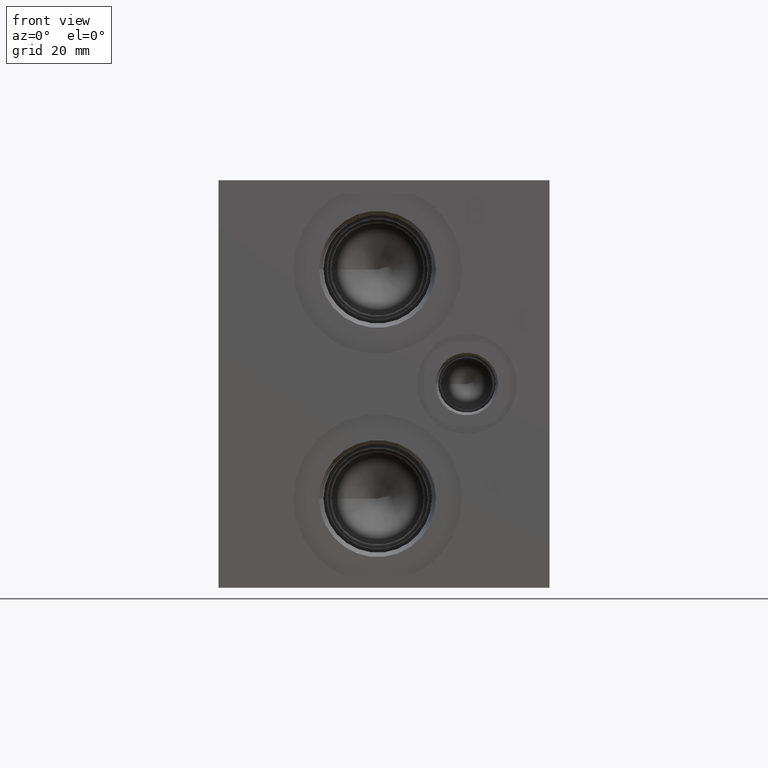
[diagram: clean part render]
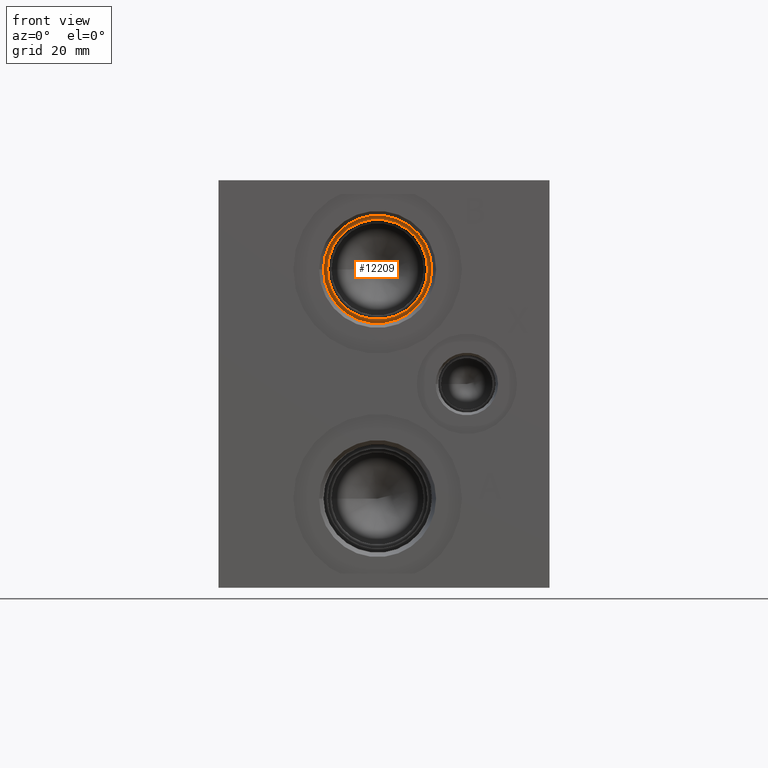
[diagram: same view with one face highlighted and labeled with its STEP entity id]
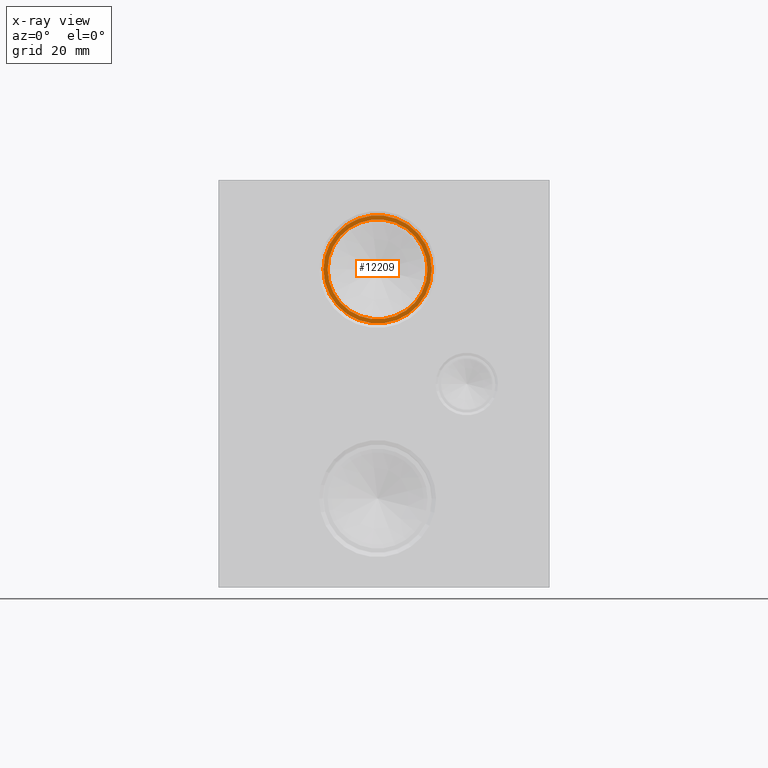
[diagram: x-ray of the same camera — body ghosted, the highlighted face saturated]
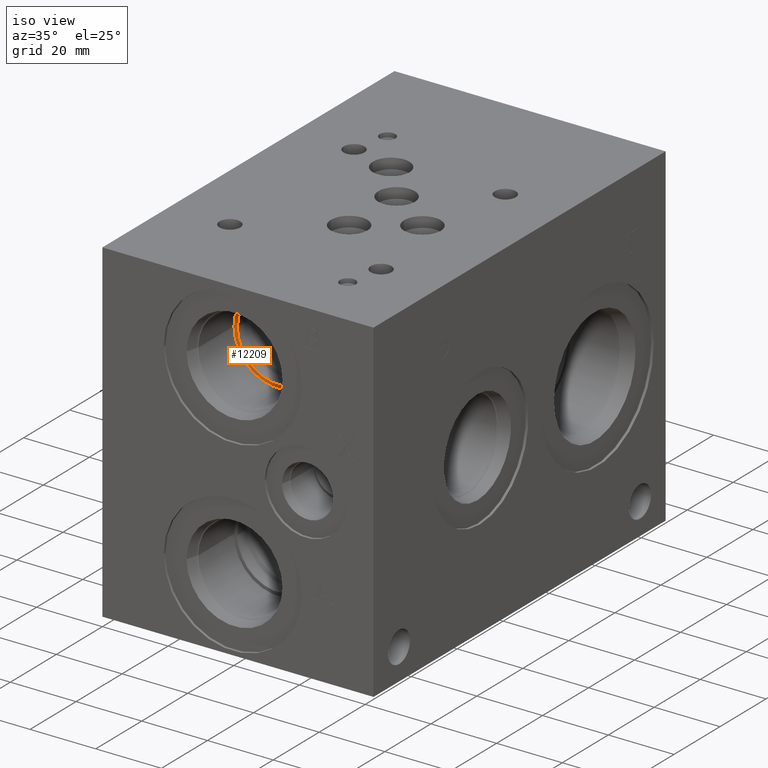
[diagram: same view with one face highlighted and labeled with its STEP entity id]
A machine part, front view. The second image highlights one B-rep face of the part: STEP entity #12209.
The next image is the same camera in x-ray: the body ghosted, the highlighted face saturated — about 0% of this face is hidden behind the body in this view.
A second angle (iso view) of the same face is appended — the face is thin or edge-on in the first view.
In plain terms, the highlighted planar face has unit normal (0, -1, 0).
Its self-contained STEP definition (entity closure, byte-faithful):
#282=CIRCLE('',#12852,13.495);
#283=CIRCLE('',#12853,13.495);
#284=CIRCLE('',#12854,12.4587);
#904=FACE_BOUND('',#2196,.T.);
#1497=FACE_OUTER_BOUND('',#2195,.T.);
#2195=EDGE_LOOP('',(#10515,#10516));
#2196=EDGE_LOOP('',(#10517));
#5618=VERTEX_POINT('',#20807);
#5619=VERTEX_POINT('',#20808);
#5620=VERTEX_POINT('',#20811);
#7286=EDGE_CURVE('',#5618,#5619,#282,.T.);
#7287=EDGE_CURVE('',#5619,#5618,#283,.T.);
#7288=EDGE_CURVE('',#5620,#5620,#284,.T.);
#10515=ORIENTED_EDGE('',*,*,#7286,.T.);
#10516=ORIENTED_EDGE('',*,*,#7287,.T.);
#10517=ORIENTED_EDGE('',*,*,#7288,.F.);
#11144=PLANE('',#12851);
#12209=ADVANCED_FACE('',(#1497,#904),#11144,.T.);
#12851=AXIS2_PLACEMENT_3D('',#20806,#15242,#15243);
#12852=AXIS2_PLACEMENT_3D('',#20809,#15244,#15245);
#12853=AXIS2_PLACEMENT_3D('',#20810,#15246,#15247);
#12854=AXIS2_PLACEMENT_3D('',#20812,#15248,#15249);
#15242=DIRECTION('center_axis',(0.,-1.,0.));
#15243=DIRECTION('ref_axis',(1.,0.,0.));
#15244=DIRECTION('center_axis',(0.,-1.,0.));
#15245=DIRECTION('ref_axis',(1.,0.,0.));
#15246=DIRECTION('center_axis',(0.,-1.,0.));
#15247=DIRECTION('ref_axis',(1.,0.,0.));
#15248=DIRECTION('center_axis',(0.,-1.,0.));
#15249=DIRECTION('ref_axis',(1.,0.,0.));
#20806=CARTESIAN_POINT('Origin',(39.6748,19.8374,79.375));
#20807=CARTESIAN_POINT('',(53.1698,19.8374,79.375));
#20808=CARTESIAN_POINT('',(26.1798,19.8374,79.375));
#20809=CARTESIAN_POINT('Origin',(39.6748,19.8374,79.375));
#20810=CARTESIAN_POINT('Origin',(39.6748,19.8374,79.375));
#20811=CARTESIAN_POINT('',(27.2161,19.8374,79.375));
#20812=CARTESIAN_POINT('Origin',(39.6748,19.8374,79.375));